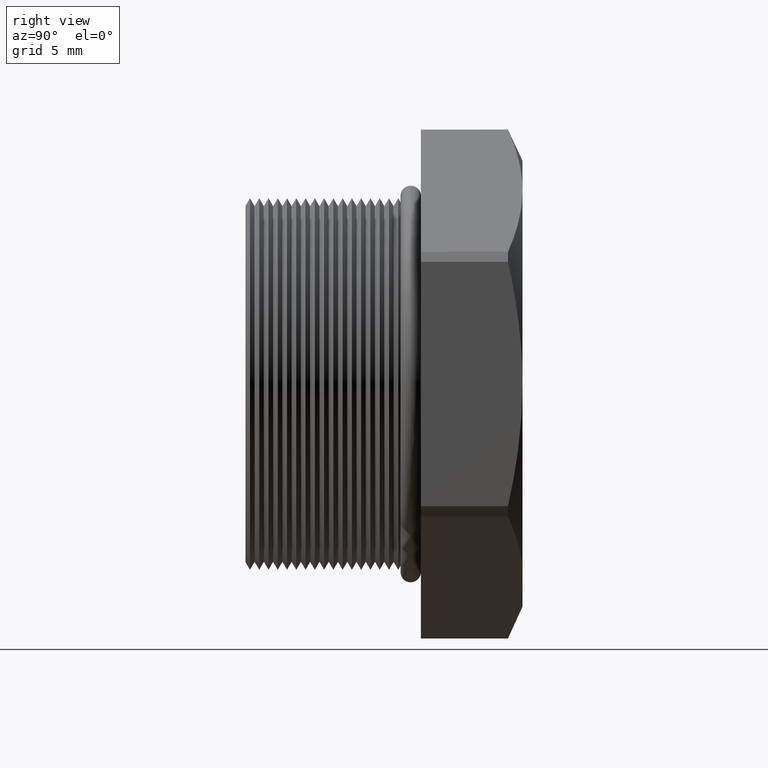
[diagram: clean part render]
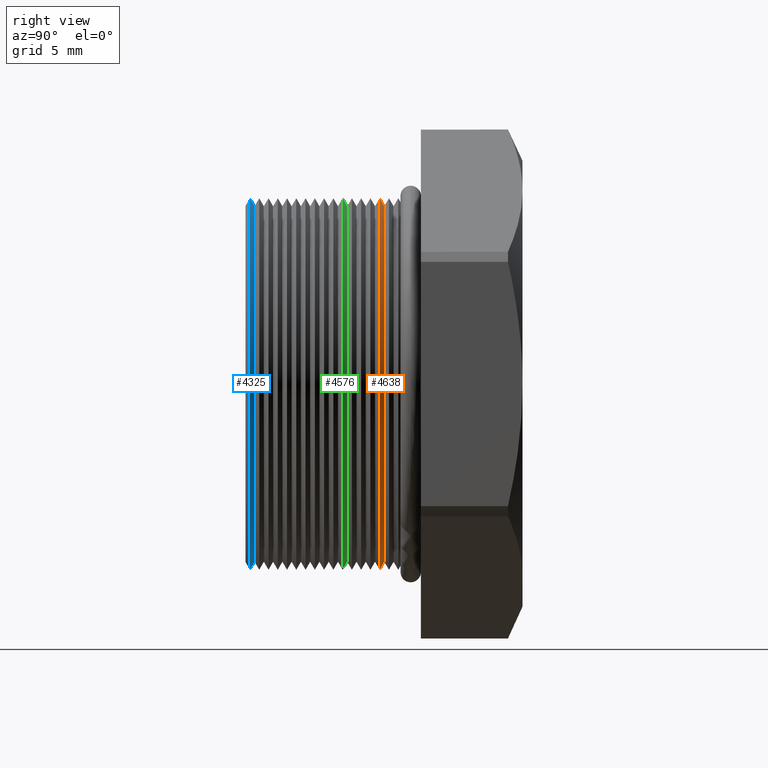
[diagram: same view with three faces highlighted in distinct colors, each labeled with its STEP entity id]
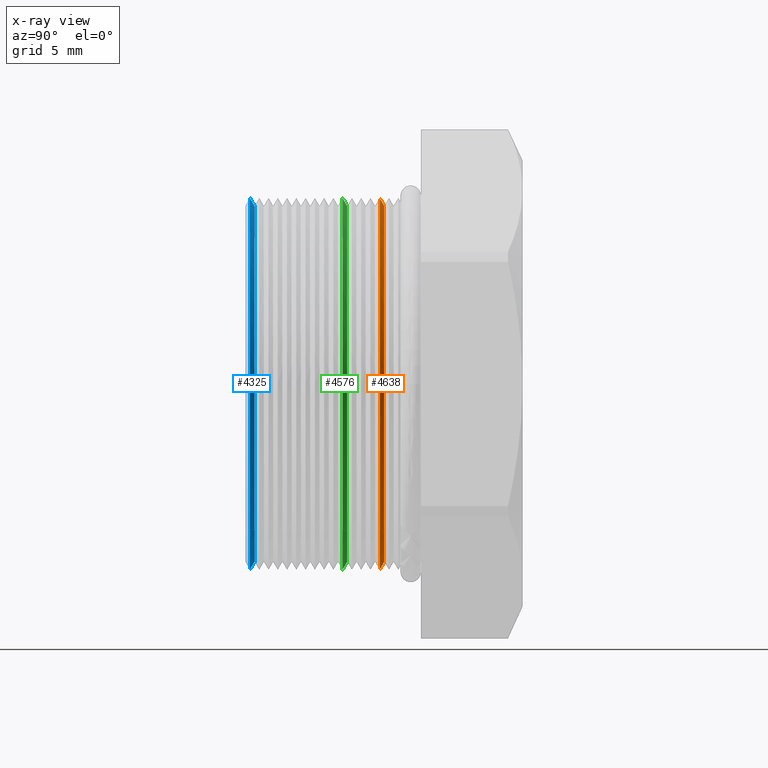
[diagram: x-ray of the same camera — body ghosted, the three highlighted faces saturated]
A machine part, right view with three faces highlighted in distinct colors.
The next image is the same camera in x-ray (body ghosted, the three faces saturated) — at least one of them is partly hidden behind the body in this view.
Their STEP definitions:

[orange] entity #4638 — the highlighted conical surface has half-angle 60 deg.
#1208 = CARTESIAN_POINT ( 'NONE',  ( 4.026318816969966200E-017, 0.1547548905829480000, 0.3287738815610546400 ) ) ;
#1209 = DIRECTION ( 'NONE',  ( 0.0000000000000000000, 0.0000000000000000000, 1.000000000000000000 ) ) ;
#1210 = DIRECTION ( 'NONE',  ( -0.0000000000000000000, 1.000000000000000000, -0.0000000000000000000 ) ) ;
#1211 = CARTESIAN_POINT ( 'NONE',  ( 0.0000000000000000000, 0.1547548905829480000, 0.0000000000000000000 ) ) ;
#1212 = AXIS2_PLACEMENT_3D ( 'NONE', #1211, #1210, #1209 ) ;
#1213 = CIRCLE ( 'NONE', #1212, 0.3287738815610546400 ) ;
#1243 = DIRECTION ( 'NONE',  ( 1.060575238724907500E-016, -0.4999999999999991100, 0.8660254037844391500 ) ) ;
#1244 = VECTOR ( 'NONE', #1243, 39.37007874015748100 ) ;
#1245 = CARTESIAN_POINT ( 'NONE',  ( 3.857637417314162700E-017, 0.1627072448100089200, 0.3150000000000000000 ) ) ;
#1246 = LINE ( 'NONE', #1245, #1244 ) ;
#1247 = CARTESIAN_POINT ( 'NONE',  ( 3.857637417314162700E-017, 0.1627072448100089200, 0.3150000000000000000 ) ) ;
#1248 = CARTESIAN_POINT ( 'NONE',  ( 0.0000000000000000000, 0.1627072448100089200, -0.3150000000000000000 ) ) ;
#1249 = DIRECTION ( 'NONE',  ( 0.0000000000000000000, 0.0000000000000000000, -1.000000000000000000 ) ) ;
#1250 = DIRECTION ( 'NONE',  ( 0.0000000000000000000, -1.000000000000000000, 0.0000000000000000000 ) ) ;
#1251 = CARTESIAN_POINT ( 'NONE',  ( 0.0000000000000000000, 0.1627072448100089200, 0.0000000000000000000 ) ) ;
#1252 = AXIS2_PLACEMENT_3D ( 'NONE', #1251, #1250, #1249 ) ;
#1253 = DIRECTION ( 'NONE',  ( 0.0000000000000000000, 0.0000000000000000000, -1.000000000000000000 ) ) ;
#1254 = DIRECTION ( 'NONE',  ( 0.0000000000000000000, -1.000000000000000000, 0.0000000000000000000 ) ) ;
#1255 = CARTESIAN_POINT ( 'NONE',  ( 0.0000000000000000000, 0.1627072448100089200, 0.0000000000000000000 ) ) ;
#1256 = AXIS2_PLACEMENT_3D ( 'NONE', #1255, #1254, #1253 ) ;
#1257 = CIRCLE ( 'NONE', #1252, 0.3150000000000000000 ) ;
#1258 = CONICAL_SURFACE ( 'NONE', #1256, 0.3150000000000000000, 1.047197551196598700 ) ;
#1259 = FACE_OUTER_BOUND ( 'NONE', #4639, .T. ) ;
#1280 = CARTESIAN_POINT ( 'NONE',  ( 0.0000000000000000000, 0.1547548905829480000, -0.3287738815610546400 ) ) ;
#1387 = DIRECTION ( 'NONE',  ( 0.0000000000000000000, -0.4999999999999991100, -0.8660254037844391500 ) ) ;
#1388 = VECTOR ( 'NONE', #1387, 39.37007874015748100 ) ;
#1389 = CARTESIAN_POINT ( 'NONE',  ( 0.0000000000000000000, 0.1627072448100089200, -0.3150000000000000000 ) ) ;
#1390 = LINE ( 'NONE', #1389, #1388 ) ;
#4633 = EDGE_CURVE ( 'NONE', #4634, #4660, #1213, .T. ) ;
#4634 = VERTEX_POINT ( 'NONE', #1208 ) ;
#4638 = ADVANCED_FACE ( 'NONE', ( #1259 ), #1258, .T. ) ;
#4639 = EDGE_LOOP ( 'NONE', ( #4640, #4644, #4646, #4701 ) ) ;
#4640 = ORIENTED_EDGE ( 'NONE', *, *, #4641, .T. ) ;
#4641 = EDGE_CURVE ( 'NONE', #4642, #4643, #1257, .T. ) ;
#4642 = VERTEX_POINT ( 'NONE', #1248 ) ;
#4643 = VERTEX_POINT ( 'NONE', #1247 ) ;
#4644 = ORIENTED_EDGE ( 'NONE', *, *, #4645, .T. ) ;
#4645 = EDGE_CURVE ( 'NONE', #4643, #4634, #1246, .T. ) ;
#4646 = ORIENTED_EDGE ( 'NONE', *, *, #4633, .T. ) ;
#4660 = VERTEX_POINT ( 'NONE', #1280 ) ;
#4701 = ORIENTED_EDGE ( 'NONE', *, *, #4702, .F. ) ;
#4702 = EDGE_CURVE ( 'NONE', #4642, #4660, #1390, .T. ) ;

[blue] entity #4325 — the highlighted conical surface has half-angle 60 deg.
#459 = CARTESIAN_POINT ( 'NONE',  ( 0.0000000000000000000, -0.07484510941705201100, -0.3287738815610546400 ) ) ;
#516 = CARTESIAN_POINT ( 'NONE',  ( 4.026318816969966200E-017, -0.07484510941705201100, 0.3287738815610546400 ) ) ;
#517 = DIRECTION ( 'NONE',  ( 0.0000000000000000000, 0.0000000000000000000, 1.000000000000000000 ) ) ;
#518 = DIRECTION ( 'NONE',  ( -0.0000000000000000000, 1.000000000000000000, -0.0000000000000000000 ) ) ;
#519 = CARTESIAN_POINT ( 'NONE',  ( 0.0000000000000000000, -0.07484510941705201100, 0.0000000000000000000 ) ) ;
#520 = AXIS2_PLACEMENT_3D ( 'NONE', #519, #518, #517 ) ;
#521 = CIRCLE ( 'NONE', #520, 0.3287738815610546400 ) ;
#553 = DIRECTION ( 'NONE',  ( 1.060575238724907500E-016, -0.4999999999999991100, 0.8660254037844391500 ) ) ;
#554 = VECTOR ( 'NONE', #553, 39.37007874015748100 ) ;
#555 = CARTESIAN_POINT ( 'NONE',  ( 3.857637417314162700E-017, -0.06689275518999110400, 0.3150000000000000000 ) ) ;
#556 = LINE ( 'NONE', #555, #554 ) ;
#611 = DIRECTION ( 'NONE',  ( 0.0000000000000000000, -0.4999999999999991100, -0.8660254037844391500 ) ) ;
#612 = VECTOR ( 'NONE', #611, 39.37007874015748100 ) ;
#613 = CARTESIAN_POINT ( 'NONE',  ( 0.0000000000000000000, -0.06689275518999110400, -0.3150000000000000000 ) ) ;
#614 = LINE ( 'NONE', #613, #612 ) ;
#623 = CARTESIAN_POINT ( 'NONE',  ( 0.0000000000000000000, -0.06689275518999110400, -0.3150000000000000000 ) ) ;
#624 = DIRECTION ( 'NONE',  ( 0.0000000000000000000, 0.0000000000000000000, -1.000000000000000000 ) ) ;
#625 = DIRECTION ( 'NONE',  ( 0.0000000000000000000, -1.000000000000000000, 0.0000000000000000000 ) ) ;
#626 = CARTESIAN_POINT ( 'NONE',  ( 0.0000000000000000000, -0.06689275518999110400, 0.0000000000000000000 ) ) ;
#627 = AXIS2_PLACEMENT_3D ( 'NONE', #626, #625, #624 ) ;
#628 = DIRECTION ( 'NONE',  ( 0.0000000000000000000, 0.0000000000000000000, -1.000000000000000000 ) ) ;
#629 = DIRECTION ( 'NONE',  ( 0.0000000000000000000, -1.000000000000000000, 0.0000000000000000000 ) ) ;
#630 = CARTESIAN_POINT ( 'NONE',  ( 0.0000000000000000000, -0.06689275518999110400, 0.0000000000000000000 ) ) ;
#631 = AXIS2_PLACEMENT_3D ( 'NONE', #630, #629, #628 ) ;
#632 = CONICAL_SURFACE ( 'NONE', #631, 0.3150000000000000000, 1.047197551196598700 ) ;
#633 = CIRCLE ( 'NONE', #627, 0.3150000000000000000 ) ;
#634 = FACE_OUTER_BOUND ( 'NONE', #4326, .T. ) ;
#3606 = VERTEX_POINT ( 'NONE', #7286 ) ;
#4253 = VERTEX_POINT ( 'NONE', #459 ) ;
#4255 = EDGE_CURVE ( 'NONE', #4256, #4253, #521, .T. ) ;
#4256 = VERTEX_POINT ( 'NONE', #516 ) ;
#4302 = ORIENTED_EDGE ( 'NONE', *, *, #4303, .T. ) ;
#4303 = EDGE_CURVE ( 'NONE', #3606, #4256, #556, .T. ) ;
#4304 = ORIENTED_EDGE ( 'NONE', *, *, #4255, .T. ) ;
#4305 = ORIENTED_EDGE ( 'NONE', *, *, #4306, .F. ) ;
#4306 = EDGE_CURVE ( 'NONE', #4329, #4253, #614, .T. ) ;
#4325 = ADVANCED_FACE ( 'NONE', ( #634 ), #632, .T. ) ;
#4326 = EDGE_LOOP ( 'NONE', ( #4327, #4302, #4304, #4305 ) ) ;
#4327 = ORIENTED_EDGE ( 'NONE', *, *, #4328, .T. ) ;
#4328 = EDGE_CURVE ( 'NONE', #4329, #3606, #633, .T. ) ;
#4329 = VERTEX_POINT ( 'NONE', #623 ) ;
#7286 = CARTESIAN_POINT ( 'NONE',  ( 3.857637417314162700E-017, -0.06689275518999110400, 0.3150000000000000000 ) ) ;

[green] entity #4576 — the highlighted conical surface has half-angle 60 deg.
#1051 = DIRECTION ( 'NONE',  ( 1.060575238724907500E-016, -0.4999999999999991100, 0.8660254037844391500 ) ) ;
#1052 = VECTOR ( 'NONE', #1051, 39.37007874015748100 ) ;
#1053 = CARTESIAN_POINT ( 'NONE',  ( 3.857637417314162700E-017, 0.09710724481000891600, 0.3150000000000000000 ) ) ;
#1054 = LINE ( 'NONE', #1053, #1052 ) ;
#1082 = DIRECTION ( 'NONE',  ( -0.0000000000000000000, 1.000000000000000000, -0.0000000000000000000 ) ) ;
#1083 = CARTESIAN_POINT ( 'NONE',  ( 0.0000000000000000000, 0.08915489058294799600, 0.0000000000000000000 ) ) ;
#1084 = AXIS2_PLACEMENT_3D ( 'NONE', #1083, #1082, #1142 ) ;
#1085 = CIRCLE ( 'NONE', #1084, 0.3287738815610546400 ) ;
#1086 = CARTESIAN_POINT ( 'NONE',  ( 0.0000000000000000000, 0.08915489058294799600, -0.3287738815610546400 ) ) ;
#1109 = DIRECTION ( 'NONE',  ( 0.0000000000000000000, -0.4999999999999991100, -0.8660254037844391500 ) ) ;
#1110 = VECTOR ( 'NONE', #1109, 39.37007874015748100 ) ;
#1111 = CARTESIAN_POINT ( 'NONE',  ( 0.0000000000000000000, 0.09710724481000891600, -0.3150000000000000000 ) ) ;
#1112 = LINE ( 'NONE', #1111, #1110 ) ;
#1124 = CARTESIAN_POINT ( 'NONE',  ( 3.857637417314162700E-017, 0.09710724481000891600, 0.3150000000000000000 ) ) ;
#1125 = CARTESIAN_POINT ( 'NONE',  ( 0.0000000000000000000, 0.09710724481000891600, -0.3150000000000000000 ) ) ;
#1126 = DIRECTION ( 'NONE',  ( 0.0000000000000000000, 0.0000000000000000000, -1.000000000000000000 ) ) ;
#1127 = DIRECTION ( 'NONE',  ( 0.0000000000000000000, -1.000000000000000000, 0.0000000000000000000 ) ) ;
#1128 = CARTESIAN_POINT ( 'NONE',  ( 0.0000000000000000000, 0.09710724481000891600, 0.0000000000000000000 ) ) ;
#1129 = AXIS2_PLACEMENT_3D ( 'NONE', #1128, #1127, #1126 ) ;
#1130 = DIRECTION ( 'NONE',  ( 0.0000000000000000000, 0.0000000000000000000, -1.000000000000000000 ) ) ;
#1131 = DIRECTION ( 'NONE',  ( 0.0000000000000000000, -1.000000000000000000, 0.0000000000000000000 ) ) ;
#1132 = CARTESIAN_POINT ( 'NONE',  ( 0.0000000000000000000, 0.09710724481000891600, 0.0000000000000000000 ) ) ;
#1133 = AXIS2_PLACEMENT_3D ( 'NONE', #1132, #1131, #1130 ) ;
#1134 = CONICAL_SURFACE ( 'NONE', #1133, 0.3150000000000000000, 1.047197551196598700 ) ;
#1135 = CIRCLE ( 'NONE', #1129, 0.3150000000000000000 ) ;
#1136 = FACE_OUTER_BOUND ( 'NONE', #4577, .T. ) ;
#1141 = CARTESIAN_POINT ( 'NONE',  ( 4.026318816969966200E-017, 0.08915489058294799600, 0.3287738815610546400 ) ) ;
#1142 = DIRECTION ( 'NONE',  ( 0.0000000000000000000, 0.0000000000000000000, 1.000000000000000000 ) ) ;
#4554 = EDGE_CURVE ( 'NONE', #4581, #4573, #1054, .T. ) ;
#4555 = ORIENTED_EDGE ( 'NONE', *, *, #4572, .T. ) ;
#4556 = ORIENTED_EDGE ( 'NONE', *, *, #4557, .F. ) ;
#4557 = EDGE_CURVE ( 'NONE', #4580, #4570, #1112, .T. ) ;
#4570 = VERTEX_POINT ( 'NONE', #1086 ) ;
#4572 = EDGE_CURVE ( 'NONE', #4573, #4570, #1085, .T. ) ;
#4573 = VERTEX_POINT ( 'NONE', #1141 ) ;
#4576 = ADVANCED_FACE ( 'NONE', ( #1136 ), #1134, .T. ) ;
#4577 = EDGE_LOOP ( 'NONE', ( #4578, #4582, #4555, #4556 ) ) ;
#4578 = ORIENTED_EDGE ( 'NONE', *, *, #4579, .T. ) ;
#4579 = EDGE_CURVE ( 'NONE', #4580, #4581, #1135, .T. ) ;
#4580 = VERTEX_POINT ( 'NONE', #1125 ) ;
#4581 = VERTEX_POINT ( 'NONE', #1124 ) ;
#4582 = ORIENTED_EDGE ( 'NONE', *, *, #4554, .T. ) ;